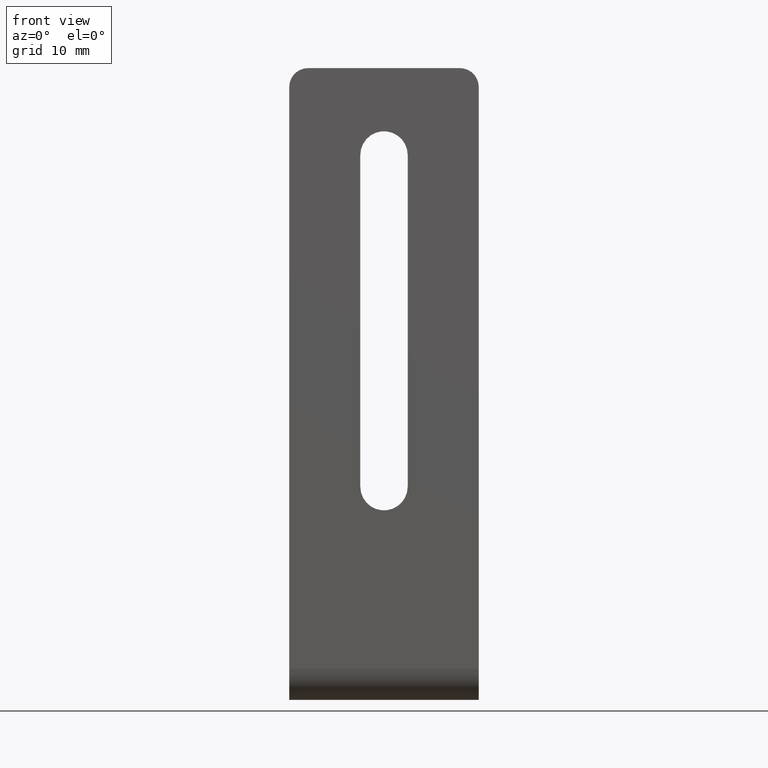
[diagram: clean part render]
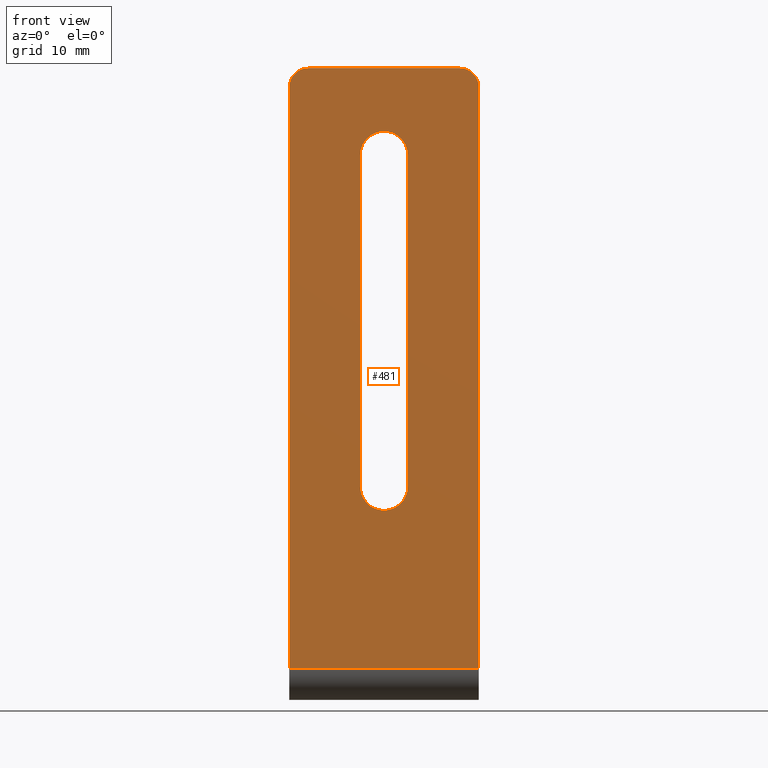
[diagram: same view with one face highlighted and labeled with its STEP entity id]
A machine part, front view. The second image highlights one B-rep face of the part: STEP entity #481.
In plain terms, the highlighted planar face has unit normal (0, -1, 0).
Its self-contained STEP definition (entity closure, byte-faithful):
#49=CARTESIAN_POINT('',(-15.0,-36.999999999998181,5.000000000000003));
#50=VERTEX_POINT('',#49);
#68=CARTESIAN_POINT('',(15.0,-36.999999999998181,5.000000000000003));
#69=VERTEX_POINT('',#68);
#77=CARTESIAN_POINT('',(-15.0,-36.999999999998181,5.000000000000003));
#78=DIRECTION('',(1.0,0.0,0.0));
#79=VECTOR('',#78,30.0);
#80=LINE('',#77,#79);
#81=EDGE_CURVE('',#50,#69,#80,.T.);
#93=CARTESIAN_POINT('',(-3.750000000000000,-36.999999999998181,33.750000000000000));
#94=VERTEX_POINT('',#93);
#101=CARTESIAN_POINT('',(3.750000000000000,-36.999999999998181,33.750000000000000));
#102=VERTEX_POINT('',#101);
#103=CARTESIAN_POINT('',(0.0,-36.999999999998181,33.750000000000000));
#104=DIRECTION('',(0.0,-1.0,6.123234E-017));
#105=DIRECTION('',(1.0,0.0,0.0));
#106=AXIS2_PLACEMENT_3D('',#103,#104,#105);
#107=CIRCLE('',#106,3.750000000000000);
#108=EDGE_CURVE('',#94,#102,#107,.T.);
#134=CARTESIAN_POINT('',(3.750000000000000,-36.999999999998174,86.250000000000000));
#135=VERTEX_POINT('',#134);
#136=CARTESIAN_POINT('',(3.750000000000000,-36.999999999998181,33.750000000000000));
#137=DIRECTION('',(0.0,0.0,1.0));
#138=VECTOR('',#137,52.500000000000000);
#139=LINE('',#136,#138);
#140=EDGE_CURVE('',#102,#135,#139,.T.);
#165=CARTESIAN_POINT('',(-3.750000000000000,-36.999999999998174,86.250000000000000));
#166=VERTEX_POINT('',#165);
#167=CARTESIAN_POINT('',(0.0,-36.999999999998174,86.250000000000000));
#168=DIRECTION('',(0.0,-1.0,6.123234E-017));
#169=DIRECTION('',(1.0,0.0,0.0));
#170=AXIS2_PLACEMENT_3D('',#167,#168,#169);
#171=CIRCLE('',#170,3.750000000000000);
#172=EDGE_CURVE('',#135,#166,#171,.T.);
#204=CARTESIAN_POINT('',(-3.750000000000000,-36.999999999998181,33.750000000000000));
#205=DIRECTION('',(0.0,0.0,1.0));
#206=VECTOR('',#205,52.500000000000000);
#207=LINE('',#204,#206);
#208=EDGE_CURVE('',#94,#166,#207,.T.);
#427=CARTESIAN_POINT('',(-15.0,-36.999999999998174,100.0));
#428=DIRECTION('',(0.0,-1.0,0.0));
#429=DIRECTION('',(0.0,0.0,-1.0));
#430=AXIS2_PLACEMENT_3D('',#427,#428,#429);
#431=PLANE('',#430);
#432=CARTESIAN_POINT('',(12.0,-36.999999999998174,100.0));
#433=VERTEX_POINT('',#432);
#434=CARTESIAN_POINT('',(15.0,-36.999999999998174,97.0));
#435=VERTEX_POINT('',#434);
#436=CARTESIAN_POINT('',(12.0,-36.999999999998174,97.0));
#437=DIRECTION('',(0.0,1.0,-1.224647E-016));
#438=DIRECTION('',(0.0,1.224647E-016,1.0));
#439=AXIS2_PLACEMENT_3D('',#436,#437,#438);
#440=CIRCLE('',#439,3.0);
#441=EDGE_CURVE('',#433,#435,#440,.T.);
#442=ORIENTED_EDGE('',*,*,#441,.F.);
#443=CARTESIAN_POINT('',(-12.0,-36.999999999998174,100.0));
#444=VERTEX_POINT('',#443);
#445=CARTESIAN_POINT('',(-12.0,-36.999999999998174,100.0));
#446=DIRECTION('',(1.0,0.0,0.0));
#447=VECTOR('',#446,24.0);
#448=LINE('',#445,#447);
#449=EDGE_CURVE('',#444,#433,#448,.T.);
#450=ORIENTED_EDGE('',*,*,#449,.F.);
#451=CARTESIAN_POINT('',(-15.0,-36.999999999998174,97.0));
#452=VERTEX_POINT('',#451);
#453=CARTESIAN_POINT('',(-12.0,-36.999999999998174,97.0));
#454=DIRECTION('',(0.0,-1.0,2.465190E-032));
#455=DIRECTION('',(0.0,2.465190E-032,1.0));
#456=AXIS2_PLACEMENT_3D('',#453,#454,#455);
#457=CIRCLE('',#456,3.0);
#458=EDGE_CURVE('',#444,#452,#457,.T.);
#459=ORIENTED_EDGE('',*,*,#458,.T.);
#460=CARTESIAN_POINT('',(-15.0,-36.999999999998174,97.0));
#461=DIRECTION('',(0.0,0.0,-1.0));
#462=VECTOR('',#461,92.0);
#463=LINE('',#460,#462);
#464=EDGE_CURVE('',#452,#50,#463,.T.);
#465=ORIENTED_EDGE('',*,*,#464,.T.);
#466=ORIENTED_EDGE('',*,*,#81,.T.);
#467=CARTESIAN_POINT('',(15.0,-36.999999999998174,97.0));
#468=DIRECTION('',(0.0,0.0,-1.0));
#469=VECTOR('',#468,92.0);
#470=LINE('',#467,#469);
#471=EDGE_CURVE('',#435,#69,#470,.T.);
#472=ORIENTED_EDGE('',*,*,#471,.F.);
#473=EDGE_LOOP('',(#442,#450,#459,#465,#466,#472));
#474=FACE_OUTER_BOUND('',#473,.T.);
#475=ORIENTED_EDGE('',*,*,#208,.T.);
#476=ORIENTED_EDGE('',*,*,#172,.F.);
#477=ORIENTED_EDGE('',*,*,#140,.F.);
#478=ORIENTED_EDGE('',*,*,#108,.F.);
#479=EDGE_LOOP('',(#475,#476,#477,#478));
#480=FACE_BOUND('',#479,.T.);
#481=ADVANCED_FACE('',(#474,#480),#431,.T.);